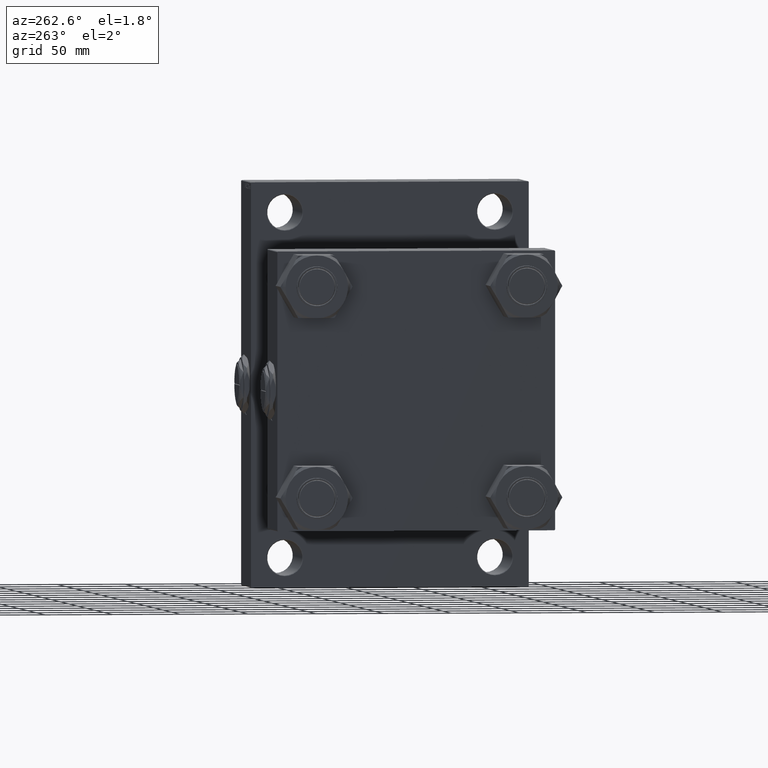
[diagram: clean part render]
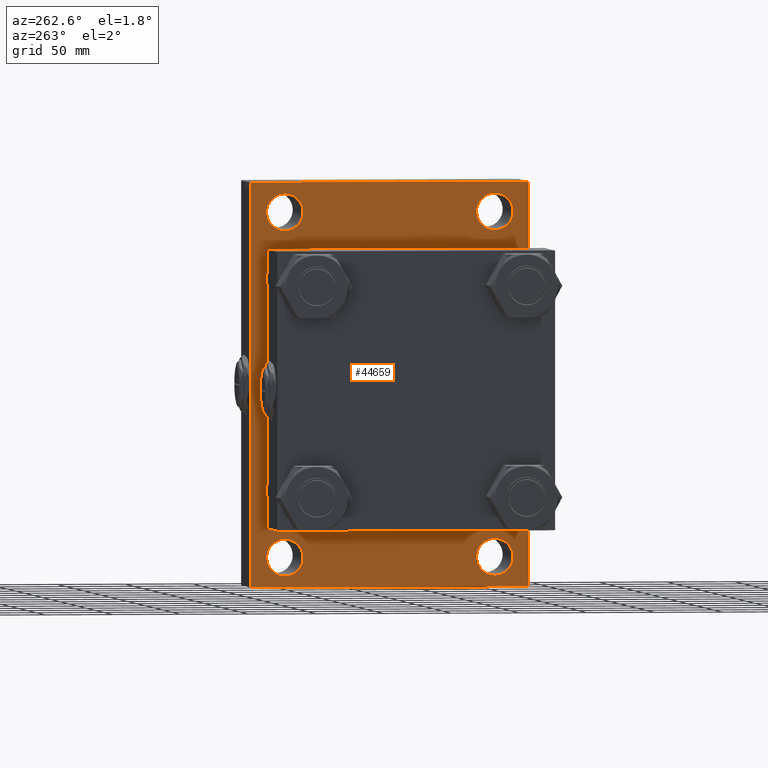
[diagram: same view with one face highlighted and labeled with its STEP entity id]
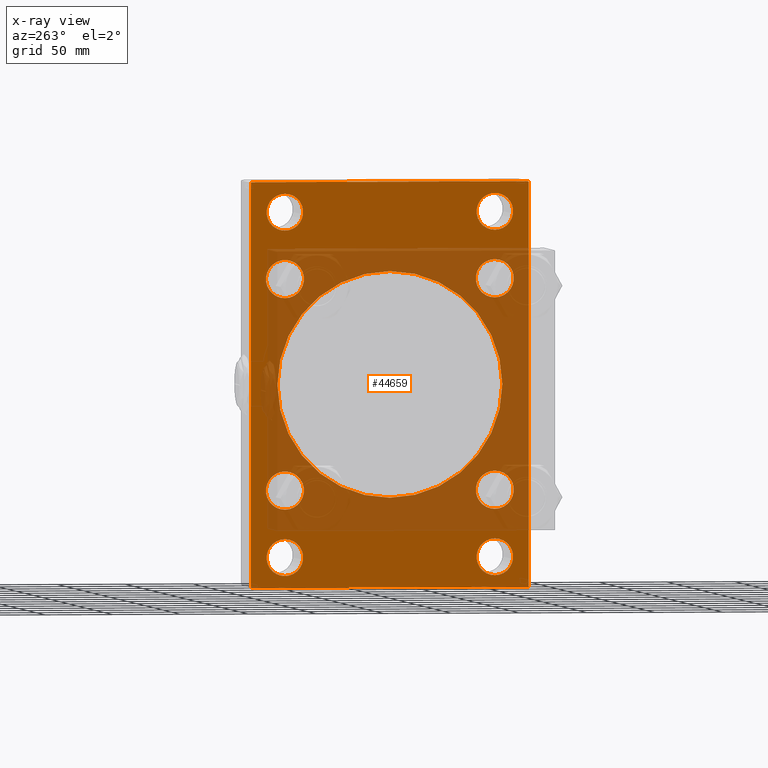
[diagram: x-ray of the same camera — body ghosted, the highlighted face saturated]
A machine part, auxiliary view. The second image highlights one B-rep face of the part: STEP entity #44659.
The next image is the same camera in x-ray: the body ghosted, the highlighted face saturated — about 47% of this face is hidden behind the body in this view.
In plain terms, the highlighted planar face has unit normal (-1, 0, 0).
Its self-contained STEP definition (entity closure, byte-faithful):
#286 = ORIENTED_EDGE ( 'NONE', *, *, #34061, .T. ) ;
#328 = DIRECTION ( 'NONE',  ( 1.000000000000000000, -0.000000000000000000, 0.000000000000000000 ) ) ;
#438 = AXIS2_PLACEMENT_3D ( 'NONE', #1329, #39774, #16594 ) ;
#441 = CIRCLE ( 'NONE', #20760, 13.49999999999995737 ) ;
#1082 = CARTESIAN_POINT ( 'NONE',  ( 150.0000000000000000, 77.44999999999998863, 91.45000000000003126 ) ) ;
#1277 = FACE_BOUND ( 'NONE', #17200, .T. ) ;
#1319 = DIRECTION ( 'NONE',  ( -0.000000000000000000, -0.7071067811865474617, -0.7071067811865474617 ) ) ;
#1329 = CARTESIAN_POINT ( 'NONE',  ( 150.0000000000000000, -2.602085213965210642E-15, 0.000000000000000000 ) ) ;
#1532 = DIRECTION ( 'NONE',  ( -1.000000000000000000, 0.000000000000000000, -0.000000000000000000 ) ) ;
#2057 = ORIENTED_EDGE ( 'NONE', *, *, #6543, .T. ) ;
#2355 = VERTEX_POINT ( 'NONE', #19765 ) ;
#2555 = AXIS2_PLACEMENT_3D ( 'NONE', #14852, #49487, #46419 ) ;
#2633 = EDGE_CURVE ( 'NONE', #34214, #44917, #43851, .T. ) ;
#2657 = EDGE_LOOP ( 'NONE', ( #10043, #21669 ) ) ;
#2717 = EDGE_LOOP ( 'NONE', ( #32788, #24765 ) ) ;
#3752 = DIRECTION ( 'NONE',  ( 0.000000000000000000, 0.000000000000000000, 1.000000000000000000 ) ) ;
#3762 = CARTESIAN_POINT ( 'NONE',  ( 150.0000000000000000, -77.49999999999998579, -112.9999999999999289 ) ) ;
#3879 = LINE ( 'NONE', #45891, #40486 ) ;
#4014 = DIRECTION ( 'NONE',  ( 0.000000000000000000, 0.000000000000000000, 1.000000000000000000 ) ) ;
#4151 = CARTESIAN_POINT ( 'NONE',  ( 150.0000000000000000, -77.49999999999998579, -126.5000000000000000 ) ) ;
#4729 = AXIS2_PLACEMENT_3D ( 'NONE', #43524, #35881, #8642 ) ;
#5096 = FACE_BOUND ( 'NONE', #21424, .T. ) ;
#5169 = VERTEX_POINT ( 'NONE', #16310 ) ;
#5449 = DIRECTION ( 'NONE',  ( 1.000000000000000000, -0.000000000000000000, 0.000000000000000000 ) ) ;
#5664 = CARTESIAN_POINT ( 'NONE',  ( 150.0000000000000000, 77.50000000000002842, -139.9999999999999716 ) ) ;
#5693 = EDGE_LOOP ( 'NONE', ( #12761, #25802 ) ) ;
#6497 = CIRCLE ( 'NONE', #39882, 13.49999999999995737 ) ;
#6543 = EDGE_CURVE ( 'NONE', #23969, #8524, #6497, .T. ) ;
#6744 = EDGE_CURVE ( 'NONE', #23261, #13444, #10581, .T. ) ;
#7078 = AXIS2_PLACEMENT_3D ( 'NONE', #28241, #43274, #15775 ) ;
#7254 = AXIS2_PLACEMENT_3D ( 'NONE', #9174, #1532, #48382 ) ;
#7553 = EDGE_CURVE ( 'NONE', #40982, #46727, #17221, .T. ) ;
#7565 = DIRECTION ( 'NONE',  ( 1.000000000000000000, -0.000000000000000000, 0.000000000000000000 ) ) ;
#7958 = EDGE_CURVE ( 'NONE', #34605, #36929, #35868, .T. ) ;
#8193 = DIRECTION ( 'NONE',  ( -0.000000000000000000, 0.7071067811865474617, 0.7071067811865474617 ) ) ;
#8293 = VERTEX_POINT ( 'NONE', #10977 ) ;
#8524 = VERTEX_POINT ( 'NONE', #38412 ) ;
#8642 = DIRECTION ( 'NONE',  ( 0.000000000000000000, 0.000000000000000000, 1.000000000000000000 ) ) ;
#8786 = VERTEX_POINT ( 'NONE', #35827 ) ;
#8920 = FACE_BOUND ( 'NONE', #45920, .T. ) ;
#9001 = ORIENTED_EDGE ( 'NONE', *, *, #36132, .T. ) ;
#9174 = CARTESIAN_POINT ( 'NONE',  ( 150.0000000000000000, 0.000000000000000000, 0.000000000000000000 ) ) ;
#9370 = VERTEX_POINT ( 'NONE', #35150 ) ;
#9471 = CIRCLE ( 'NONE', #46865, 14.00000000000001243 ) ;
#9649 = CARTESIAN_POINT ( 'NONE',  ( 150.0000000000000000, 77.50000000000002842, 126.5000000000000000 ) ) ;
#9953 = LINE ( 'NONE', #30044, #32676 ) ;
#10043 = ORIENTED_EDGE ( 'NONE', *, *, #31971, .T. ) ;
#10102 = EDGE_CURVE ( 'NONE', #29125, #8293, #9953, .T. ) ;
#10175 = VERTEX_POINT ( 'NONE', #21645 ) ;
#10457 = VECTOR ( 'NONE', #43271, 1000.000000000000114 ) ;
#10581 = CIRCLE ( 'NONE', #39062, 14.00000000000001243 ) ;
#10589 = DIRECTION ( 'NONE',  ( 0.000000000000000000, -1.000000000000000000, 0.000000000000000000 ) ) ;
#10961 = DIRECTION ( 'NONE',  ( 0.000000000000000000, 0.000000000000000000, -1.000000000000000000 ) ) ;
#10977 = CARTESIAN_POINT ( 'NONE',  ( 150.0000000000000000, -102.5000000000000142, -147.9999999999999432 ) ) ;
#11088 = DIRECTION ( 'NONE',  ( 1.000000000000000000, -0.000000000000000000, 0.000000000000000000 ) ) ;
#11568 = CARTESIAN_POINT ( 'NONE',  ( 150.0000000000000000, -77.44999999999996021, -63.45000000000001705 ) ) ;
#11821 = CIRCLE ( 'NONE', #28068, 14.00000000000001243 ) ;
#12049 = ORIENTED_EDGE ( 'NONE', *, *, #24473, .T. ) ;
#12081 = CIRCLE ( 'NONE', #30767, 13.49999999999995737 ) ;
#12135 = DIRECTION ( 'NONE',  ( 1.000000000000000000, -0.000000000000000000, 0.000000000000000000 ) ) ;
#12518 = ORIENTED_EDGE ( 'NONE', *, *, #27063, .T. ) ;
#12746 = CIRCLE ( 'NONE', #7078, 14.00000000000001243 ) ;
#12761 = ORIENTED_EDGE ( 'NONE', *, *, #38743, .T. ) ;
#12987 = PLANE ( 'NONE',  #7254 ) ;
#13220 = CARTESIAN_POINT ( 'NONE',  ( 150.0000000000000000, 77.44999999999998863, 77.45000000000001705 ) ) ;
#13327 = CARTESIAN_POINT ( 'NONE',  ( 150.0000000000000000, -77.44999999999996021, 77.45000000000003126 ) ) ;
#13377 = CARTESIAN_POINT ( 'NONE',  ( 150.0000000000000000, 77.44999999999998863, 77.45000000000001705 ) ) ;
#13444 = VERTEX_POINT ( 'NONE', #1082 ) ;
#13638 = VERTEX_POINT ( 'NONE', #17357 ) ;
#13695 = VERTEX_POINT ( 'NONE', #5664 ) ;
#13963 = DIRECTION ( 'NONE',  ( 1.000000000000000000, -0.000000000000000000, 0.000000000000000000 ) ) ;
#13989 = CARTESIAN_POINT ( 'NONE',  ( 150.0000000000000000, 77.44999999999998863, 63.45000000000000284 ) ) ;
#14781 = LINE ( 'NONE', #30299, #36491 ) ;
#14852 = CARTESIAN_POINT ( 'NONE',  ( 150.0000000000000000, -77.49999999999998579, -126.5000000000000000 ) ) ;
#15191 = CARTESIAN_POINT ( 'NONE',  ( 150.0000000000000000, 77.50000000000002842, 126.5000000000000000 ) ) ;
#15775 = DIRECTION ( 'NONE',  ( 0.000000000000000000, 0.000000000000000000, 1.000000000000000000 ) ) ;
#16310 = CARTESIAN_POINT ( 'NONE',  ( 150.0000000000000000, 102.5000000000000142, 148.0000000000000000 ) ) ;
#16492 = CARTESIAN_POINT ( 'NONE',  ( 150.0000000000000000, -77.44999999999996021, -77.45000000000003126 ) ) ;
#16594 = DIRECTION ( 'NONE',  ( 0.000000000000000000, 0.000000000000000000, -1.000000000000000000 ) ) ;
#16738 = ORIENTED_EDGE ( 'NONE', *, *, #29947, .T. ) ;
#16872 = CIRCLE ( 'NONE', #45328, 14.00000000000001243 ) ;
#16925 = DIRECTION ( 'NONE',  ( 0.000000000000000000, 0.000000000000000000, 1.000000000000000000 ) ) ;
#16950 = DIRECTION ( 'NONE',  ( 1.000000000000000000, -0.000000000000000000, 0.000000000000000000 ) ) ;
#17200 = EDGE_LOOP ( 'NONE', ( #9001, #24190 ) ) ;
#17221 = LINE ( 'NONE', #48541, #18755 ) ;
#17357 = CARTESIAN_POINT ( 'NONE',  ( 150.0000000000000000, -77.44999999999996021, 63.45000000000001705 ) ) ;
#17605 = CARTESIAN_POINT ( 'NONE',  ( 150.0000000000000000, -102.5000000000000142, 148.0000000000000000 ) ) ;
#17693 = DIRECTION ( 'NONE',  ( 0.000000000000000000, 0.000000000000000000, 1.000000000000000000 ) ) ;
#18755 = VECTOR ( 'NONE', #10589, 1000.000000000000000 ) ;
#19332 = DIRECTION ( 'NONE',  ( 0.000000000000000000, -1.000000000000000000, -1.353930517835556727E-16 ) ) ;
#19684 = EDGE_LOOP ( 'NONE', ( #35904, #41933 ) ) ;
#19765 = CARTESIAN_POINT ( 'NONE',  ( 150.0000000000000000, 102.5000000000000142, -148.0000000000000000 ) ) ;
#19955 = DIRECTION ( 'NONE',  ( 0.000000000000000000, 0.000000000000000000, -1.000000000000000000 ) ) ;
#20366 = FACE_BOUND ( 'NONE', #19684, .T. ) ;
#20492 = DIRECTION ( 'NONE',  ( 1.000000000000000000, -0.000000000000000000, 0.000000000000000000 ) ) ;
#20618 = FACE_BOUND ( 'NONE', #25073, .T. ) ;
#20751 = CARTESIAN_POINT ( 'NONE',  ( 150.0000000000000000, 77.50000000000002842, 139.9999999999999716 ) ) ;
#20760 = AXIS2_PLACEMENT_3D ( 'NONE', #9649, #47843, #29233 ) ;
#21424 = EDGE_LOOP ( 'NONE', ( #22455, #39246 ) ) ;
#21645 = CARTESIAN_POINT ( 'NONE',  ( 150.0000000000000000, -77.49999999999997158, 113.0000000000000711 ) ) ;
#21669 = ORIENTED_EDGE ( 'NONE', *, *, #36994, .T. ) ;
#21898 = DIRECTION ( 'NONE',  ( 0.000000000000000000, 0.000000000000000000, -1.000000000000000000 ) ) ;
#22455 = ORIENTED_EDGE ( 'NONE', *, *, #24571, .T. ) ;
#23016 = VERTEX_POINT ( 'NONE', #42553 ) ;
#23261 = VERTEX_POINT ( 'NONE', #13989 ) ;
#23274 = CARTESIAN_POINT ( 'NONE',  ( 150.0000000000000000, -2.602085213965210642E-15, 0.000000000000000000 ) ) ;
#23418 = CARTESIAN_POINT ( 'NONE',  ( 150.0000000000000000, -102.0000000000000142, -148.5000000000000284 ) ) ;
#23591 = CARTESIAN_POINT ( 'NONE',  ( 150.0000000000000000, -125.2499999999972005, -125.2500000000041354 ) ) ;
#23969 = VERTEX_POINT ( 'NONE', #20751 ) ;
#24009 = CIRCLE ( 'NONE', #438, 83.00000000000000000 ) ;
#24102 = CIRCLE ( 'NONE', #39570, 14.00000000000001243 ) ;
#24190 = ORIENTED_EDGE ( 'NONE', *, *, #2633, .T. ) ;
#24473 = EDGE_CURVE ( 'NONE', #34264, #13638, #12746, .T. ) ;
#24571 = EDGE_CURVE ( 'NONE', #13444, #23261, #24102, .T. ) ;
#24765 = ORIENTED_EDGE ( 'NONE', *, *, #24914, .T. ) ;
#24914 = EDGE_CURVE ( 'NONE', #36929, #34605, #33893, .T. ) ;
#25073 = EDGE_LOOP ( 'NONE', ( #37380, #42615 ) ) ;
#25323 = ORIENTED_EDGE ( 'NONE', *, *, #47068, .T. ) ;
#25375 = VERTEX_POINT ( 'NONE', #23418 ) ;
#25802 = ORIENTED_EDGE ( 'NONE', *, *, #42623, .T. ) ;
#26163 = DIRECTION ( 'NONE',  ( 1.000000000000000000, -0.000000000000000000, 0.000000000000000000 ) ) ;
#26317 = ORIENTED_EDGE ( 'NONE', *, *, #31232, .T. ) ;
#26565 = AXIS2_PLACEMENT_3D ( 'NONE', #4151, #30877, #42842 ) ;
#26618 = DIRECTION ( 'NONE',  ( 0.000000000000000000, 0.000000000000000000, 1.000000000000000000 ) ) ;
#27063 = EDGE_CURVE ( 'NONE', #13638, #34264, #29105, .T. ) ;
#27367 = CARTESIAN_POINT ( 'NONE',  ( 150.0000000000000000, 77.44999999999998863, -91.45000000000003126 ) ) ;
#27416 = LINE ( 'NONE', #23591, #34812 ) ;
#27554 = CIRCLE ( 'NONE', #47083, 13.49999999999995737 ) ;
#27573 = DIRECTION ( 'NONE',  ( 0.000000000000000000, 0.000000000000000000, 1.000000000000000000 ) ) ;
#27669 = DIRECTION ( 'NONE',  ( 0.000000000000000000, -0.7071067811865671127, 0.7071067811865279218 ) ) ;
#28068 = AXIS2_PLACEMENT_3D ( 'NONE', #35075, #42722, #46795 ) ;
#28199 = CARTESIAN_POINT ( 'NONE',  ( 150.0000000000000000, -2.602085213965210642E-15, 83.00000000000000000 ) ) ;
#28241 = CARTESIAN_POINT ( 'NONE',  ( 150.0000000000000000, -77.44999999999996021, 77.45000000000003126 ) ) ;
#28941 = VECTOR ( 'NONE', #1319, 1000.000000000000114 ) ;
#29105 = CIRCLE ( 'NONE', #47783, 14.00000000000001243 ) ;
#29125 = VERTEX_POINT ( 'NONE', #17605 ) ;
#29233 = DIRECTION ( 'NONE',  ( 0.000000000000000000, 0.000000000000000000, 1.000000000000000000 ) ) ;
#29306 = ORIENTED_EDGE ( 'NONE', *, *, #10102, .F. ) ;
#29947 = EDGE_CURVE ( 'NONE', #29125, #46727, #3879, .T. ) ;
#30044 = CARTESIAN_POINT ( 'NONE',  ( 150.0000000000000000, -102.5000000000000142, 148.5000000000000000 ) ) ;
#30299 = CARTESIAN_POINT ( 'NONE',  ( 150.0000000000000000, 102.5000000000000142, 148.5000000000000000 ) ) ;
#30767 = AXIS2_PLACEMENT_3D ( 'NONE', #49857, #26163, #4014 ) ;
#30877 = DIRECTION ( 'NONE',  ( 1.000000000000000000, -0.000000000000000000, 0.000000000000000000 ) ) ;
#31232 = EDGE_CURVE ( 'NONE', #5169, #2355, #14781, .T. ) ;
#31324 = EDGE_CURVE ( 'NONE', #40982, #5169, #31797, .T. ) ;
#31593 = EDGE_CURVE ( 'NONE', #10175, #23016, #12081, .T. ) ;
#31641 = ORIENTED_EDGE ( 'NONE', *, *, #31324, .T. ) ;
#31797 = LINE ( 'NONE', #47849, #10457 ) ;
#31971 = EDGE_CURVE ( 'NONE', #44125, #13695, #32406, .T. ) ;
#32022 = DIRECTION ( 'NONE',  ( 1.000000000000000000, -0.000000000000000000, 0.000000000000000000 ) ) ;
#32406 = CIRCLE ( 'NONE', #38919, 13.49999999999995737 ) ;
#32622 = CARTESIAN_POINT ( 'NONE',  ( 150.0000000000000000, 7.562483218957820855E-15, -83.00000000000000000 ) ) ;
#32676 = VECTOR ( 'NONE', #21898, 1000.000000000000000 ) ;
#32788 = ORIENTED_EDGE ( 'NONE', *, *, #7958, .T. ) ;
#32861 = LINE ( 'NONE', #48417, #50324 ) ;
#32963 = CIRCLE ( 'NONE', #39487, 13.49999999999995737 ) ;
#33463 = EDGE_CURVE ( 'NONE', #8524, #23969, #441, .T. ) ;
#33893 = CIRCLE ( 'NONE', #26565, 13.50000000000006750 ) ;
#34061 = EDGE_CURVE ( 'NONE', #2355, #8786, #36194, .T. ) ;
#34214 = VERTEX_POINT ( 'NONE', #32622 ) ;
#34264 = VERTEX_POINT ( 'NONE', #36451 ) ;
#34605 = VERTEX_POINT ( 'NONE', #3762 ) ;
#34812 = VECTOR ( 'NONE', #27669, 1000.000000000000000 ) ;
#34960 = VERTEX_POINT ( 'NONE', #27367 ) ;
#35075 = CARTESIAN_POINT ( 'NONE',  ( 150.0000000000000000, 77.44999999999998863, -77.45000000000001705 ) ) ;
#35109 = VERTEX_POINT ( 'NONE', #42784 ) ;
#35150 = CARTESIAN_POINT ( 'NONE',  ( 150.0000000000000000, -77.44999999999996021, -91.45000000000004547 ) ) ;
#35183 = CARTESIAN_POINT ( 'NONE',  ( 150.0000000000000000, 125.2500000000000000, -125.2500000000000000 ) ) ;
#35203 = CARTESIAN_POINT ( 'NONE',  ( 150.0000000000000000, 77.50000000000002842, -126.5000000000000000 ) ) ;
#35552 = CARTESIAN_POINT ( 'NONE',  ( 150.0000000000000000, 77.44999999999998863, -77.45000000000001705 ) ) ;
#35827 = CARTESIAN_POINT ( 'NONE',  ( 150.0000000000000000, 102.0000000000000142, -148.5000000000000000 ) ) ;
#35868 = CIRCLE ( 'NONE', #2555, 13.50000000000006750 ) ;
#35881 = DIRECTION ( 'NONE',  ( 1.000000000000000000, -0.000000000000000000, 0.000000000000000000 ) ) ;
#35904 = ORIENTED_EDGE ( 'NONE', *, *, #43896, .T. ) ;
#36132 = EDGE_CURVE ( 'NONE', #44917, #34214, #24009, .T. ) ;
#36151 = FACE_BOUND ( 'NONE', #5693, .T. ) ;
#36194 = LINE ( 'NONE', #35183, #28941 ) ;
#36451 = CARTESIAN_POINT ( 'NONE',  ( 150.0000000000000000, -77.44999999999996021, 91.45000000000004547 ) ) ;
#36491 = VECTOR ( 'NONE', #10961, 1000.000000000000000 ) ;
#36597 = CARTESIAN_POINT ( 'NONE',  ( 150.0000000000000000, -77.49999999999998579, -140.0000000000000568 ) ) ;
#36770 = EDGE_CURVE ( 'NONE', #34960, #35109, #11821, .T. ) ;
#36929 = VERTEX_POINT ( 'NONE', #36597 ) ;
#36994 = EDGE_CURVE ( 'NONE', #13695, #44125, #32963, .T. ) ;
#37032 = CARTESIAN_POINT ( 'NONE',  ( 150.0000000000000000, -77.49999999999997158, 126.5000000000000284 ) ) ;
#37380 = ORIENTED_EDGE ( 'NONE', *, *, #41374, .T. ) ;
#37498 = EDGE_LOOP ( 'NONE', ( #25323, #37706, #29306, #16738, #40252, #31641, #26317, #286 ) ) ;
#37706 = ORIENTED_EDGE ( 'NONE', *, *, #41827, .T. ) ;
#38412 = CARTESIAN_POINT ( 'NONE',  ( 150.0000000000000000, 77.50000000000002842, 113.0000000000000426 ) ) ;
#38743 = EDGE_CURVE ( 'NONE', #39553, #9370, #9471, .T. ) ;
#38867 = CIRCLE ( 'NONE', #4729, 14.00000000000001243 ) ;
#38872 = CARTESIAN_POINT ( 'NONE',  ( 150.0000000000000000, -102.0000000000000142, 148.5000000000000000 ) ) ;
#38919 = AXIS2_PLACEMENT_3D ( 'NONE', #45960, #11088, #26618 ) ;
#39052 = CARTESIAN_POINT ( 'NONE',  ( 150.0000000000000000, 77.50000000000002842, -113.0000000000000426 ) ) ;
#39062 = AXIS2_PLACEMENT_3D ( 'NONE', #13377, #16950, #17693 ) ;
#39246 = ORIENTED_EDGE ( 'NONE', *, *, #6744, .T. ) ;
#39324 = DIRECTION ( 'NONE',  ( 1.000000000000000000, 0.000000000000000000, 0.000000000000000000 ) ) ;
#39487 = AXIS2_PLACEMENT_3D ( 'NONE', #35203, #328, #27573 ) ;
#39553 = VERTEX_POINT ( 'NONE', #11568 ) ;
#39570 = AXIS2_PLACEMENT_3D ( 'NONE', #13220, #13963, #48362 ) ;
#39774 = DIRECTION ( 'NONE',  ( 1.000000000000000000, 0.000000000000000000, 0.000000000000000000 ) ) ;
#39882 = AXIS2_PLACEMENT_3D ( 'NONE', #15191, #7565, #41930 ) ;
#39984 = FACE_BOUND ( 'NONE', #46641, .T. ) ;
#40181 = DIRECTION ( 'NONE',  ( 0.000000000000000000, 0.000000000000000000, 1.000000000000000000 ) ) ;
#40252 = ORIENTED_EDGE ( 'NONE', *, *, #7553, .F. ) ;
#40486 = VECTOR ( 'NONE', #8193, 1000.000000000000114 ) ;
#40982 = VERTEX_POINT ( 'NONE', #48907 ) ;
#41374 = EDGE_CURVE ( 'NONE', #35109, #34960, #16872, .T. ) ;
#41827 = EDGE_CURVE ( 'NONE', #25375, #8293, #27416, .T. ) ;
#41930 = DIRECTION ( 'NONE',  ( 0.000000000000000000, 0.000000000000000000, 1.000000000000000000 ) ) ;
#41933 = ORIENTED_EDGE ( 'NONE', *, *, #31593, .T. ) ;
#42553 = CARTESIAN_POINT ( 'NONE',  ( 150.0000000000000000, -77.49999999999997158, 139.9999999999999716 ) ) ;
#42615 = ORIENTED_EDGE ( 'NONE', *, *, #36770, .T. ) ;
#42623 = EDGE_CURVE ( 'NONE', #9370, #39553, #38867, .T. ) ;
#42722 = DIRECTION ( 'NONE',  ( 1.000000000000000000, -0.000000000000000000, 0.000000000000000000 ) ) ;
#42784 = CARTESIAN_POINT ( 'NONE',  ( 150.0000000000000000, 77.44999999999998863, -63.45000000000000284 ) ) ;
#42842 = DIRECTION ( 'NONE',  ( 0.000000000000000000, 0.000000000000000000, 1.000000000000000000 ) ) ;
#43271 = DIRECTION ( 'NONE',  ( 0.000000000000000000, 0.7071067811865474617, -0.7071067811865474617 ) ) ;
#43274 = DIRECTION ( 'NONE',  ( 1.000000000000000000, -0.000000000000000000, 0.000000000000000000 ) ) ;
#43524 = CARTESIAN_POINT ( 'NONE',  ( 150.0000000000000000, -77.44999999999996021, -77.45000000000003126 ) ) ;
#43851 = CIRCLE ( 'NONE', #50363, 83.00000000000000000 ) ;
#43896 = EDGE_CURVE ( 'NONE', #23016, #10175, #27554, .T. ) ;
#44054 = FACE_BOUND ( 'NONE', #2717, .T. ) ;
#44125 = VERTEX_POINT ( 'NONE', #39052 ) ;
#44659 = ADVANCED_FACE ( 'NONE', ( #20366, #44054, #47617, #39984, #8920, #5096, #20618, #36151, #1277, #47873 ), #12987, .T. ) ;
#44917 = VERTEX_POINT ( 'NONE', #28199 ) ;
#45328 = AXIS2_PLACEMENT_3D ( 'NONE', #35552, #12135, #3752 ) ;
#45891 = CARTESIAN_POINT ( 'NONE',  ( 150.0000000000000000, -125.2500000000000000, 125.2500000000000000 ) ) ;
#45920 = EDGE_LOOP ( 'NONE', ( #12049, #12518 ) ) ;
#45960 = CARTESIAN_POINT ( 'NONE',  ( 150.0000000000000000, 77.50000000000002842, -126.5000000000000000 ) ) ;
#46419 = DIRECTION ( 'NONE',  ( 0.000000000000000000, 0.000000000000000000, 1.000000000000000000 ) ) ;
#46641 = EDGE_LOOP ( 'NONE', ( #2057, #49968 ) ) ;
#46727 = VERTEX_POINT ( 'NONE', #38872 ) ;
#46795 = DIRECTION ( 'NONE',  ( 0.000000000000000000, 0.000000000000000000, 1.000000000000000000 ) ) ;
#46865 = AXIS2_PLACEMENT_3D ( 'NONE', #16492, #32022, #40181 ) ;
#47068 = EDGE_CURVE ( 'NONE', #8786, #25375, #32861, .T. ) ;
#47083 = AXIS2_PLACEMENT_3D ( 'NONE', #37032, #20492, #16925 ) ;
#47617 = FACE_BOUND ( 'NONE', #2657, .T. ) ;
#47783 = AXIS2_PLACEMENT_3D ( 'NONE', #13327, #5449, #49408 ) ;
#47843 = DIRECTION ( 'NONE',  ( 1.000000000000000000, -0.000000000000000000, 0.000000000000000000 ) ) ;
#47849 = CARTESIAN_POINT ( 'NONE',  ( 150.0000000000000000, 125.2500000000000000, 125.2500000000000000 ) ) ;
#47873 = FACE_OUTER_BOUND ( 'NONE', #37498, .T. ) ;
#48362 = DIRECTION ( 'NONE',  ( 0.000000000000000000, 0.000000000000000000, 1.000000000000000000 ) ) ;
#48382 = DIRECTION ( 'NONE',  ( -0.000000000000000000, 0.000000000000000000, 1.000000000000000000 ) ) ;
#48417 = CARTESIAN_POINT ( 'NONE',  ( 150.0000000000000000, 102.5000000000000142, -148.5000000000000000 ) ) ;
#48541 = CARTESIAN_POINT ( 'NONE',  ( 150.0000000000000000, 102.5000000000000142, 148.5000000000000000 ) ) ;
#48907 = CARTESIAN_POINT ( 'NONE',  ( 150.0000000000000000, 102.0000000000000142, 148.5000000000000000 ) ) ;
#49408 = DIRECTION ( 'NONE',  ( 0.000000000000000000, 0.000000000000000000, 1.000000000000000000 ) ) ;
#49487 = DIRECTION ( 'NONE',  ( 1.000000000000000000, -0.000000000000000000, 0.000000000000000000 ) ) ;
#49857 = CARTESIAN_POINT ( 'NONE',  ( 150.0000000000000000, -77.49999999999997158, 126.5000000000000284 ) ) ;
#49968 = ORIENTED_EDGE ( 'NONE', *, *, #33463, .T. ) ;
#50324 = VECTOR ( 'NONE', #19332, 1000.000000000000000 ) ;
#50363 = AXIS2_PLACEMENT_3D ( 'NONE', #23274, #39324, #19955 ) ;